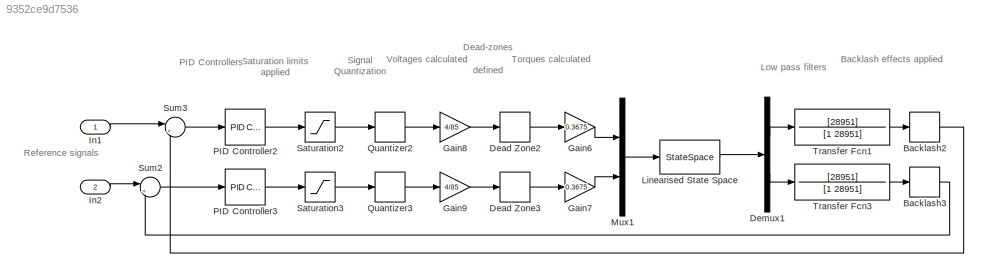
MODEL slx_9352ce9d7536
KIND model
CONFIG AbsTol = auto
CONFIG EnableMultiTasking = off
CONFIG FixedStep = auto
CONFIG MaxStep = auto
CONFIG MinStep = auto
CONFIG RelTol = 1e-3
CONFIG SampleTimeConstraint = Unconstrained
CONFIG SolverName = VariableStepAuto
CONFIG StartTime = 0.0
CONFIG StopTime = 10.0
BLOCK [Backlash] Backlash2
  BacklashWidth = 3
BLOCK [Backlash] Backlash3
  BacklashWidth = 3
BLOCK [DeadZone] Dead Zone2
  LowerValue = -2.1
  UpperValue = 2.1
BLOCK [DeadZone] Dead Zone3
  LowerValue = -2.1
  UpperValue = 2.1
BLOCK [Demux] Demux1
  Outputs = 2
BLOCK [Gain] Gain6
  Gain = 0.3675
BLOCK [Gain] Gain7
  Gain = 0.3675
BLOCK [Gain] Gain8
  Gain = 4/85
BLOCK [Gain] Gain9
  Gain = 4/85
BLOCK [Inport] In1
BLOCK [Inport] In2
  Port = 2
BLOCK [StateSpace] Linearised State Space
  A = A
  B = B
  C = [1 0 0 0; 0 1 0 0]
  D = [0 0; 0 0]
  InitialCondition = 0
BLOCK [Mux] Mux1
  DisplayOption = bar
  Inputs = 2
BLOCK [Reference] PID Controller2  REF=slpidlib/PID Controller
  LibrarySourceBlock = simulink/Continuous/PID Controller
  SourceBlock = slpidlib/PID Controller
  SourceType = PID 1dof
BLOCK [Reference] PID Controller3  REF=slpidlib/PID Controller
  LibrarySourceBlock = simulink/Continuous/PID Controller
  SourceBlock = slpidlib/PID Controller
  SourceType = PID 1dof
BLOCK [Quantizer] Quantizer2
  QuantizationInterval = 1
BLOCK [Quantizer] Quantizer3
  QuantizationInterval = 1
BLOCK [Saturate] Saturation2
  LowerLimit = -255
  UpperLimit = 255
BLOCK [Saturate] Saturation3
  LowerLimit = -255
  UpperLimit = 255
BLOCK [Sum] Sum2
  Inputs = |+-
BLOCK [Sum] Sum3
  Inputs = |+-
BLOCK [TransferFcn] Transfer Fcn1
  Denominator = [1 28951]
  Numerator = [28951]
BLOCK [TransferFcn] Transfer Fcn3
  Denominator = [1 28951]
  Numerator = [28951]
ANNOTATION (root): Backlash effects applied
ANNOTATION (root): Dead-zones defined
ANNOTATION (root): Low pass filters
ANNOTATION (root): Reference signals
ANNOTATION (root): Saturation limits applied
ANNOTATION (root): Signal Quantization
ANNOTATION (root): Torques calculated
ANNOTATION (root): Voltages calculated
ANNOTATION (root): PID Controllers
LINE Backlash2:1 -> Sum3:2
LINE Backlash3:1 -> Sum2:2
LINE Dead Zone2:1 -> Gain6:1
LINE Dead Zone3:1 -> Gain7:1
LINE Demux1:1 -> Transfer Fcn1:1
LINE Demux1:2 -> Transfer Fcn3:1
LINE Gain6:1 -> Mux1:1
LINE Gain7:1 -> Mux1:2
LINE Gain8:1 -> Dead Zone2:1
LINE Gain9:1 -> Dead Zone3:1
LINE In1:1 -> Sum3:1
LINE In2:1 -> Sum2:1
LINE Linearised State Space:1 -> Demux1:1
LINE Mux1:1 -> Linearised State Space:1
LINE PID Controller2:1 -> Saturation2:1
LINE PID Controller3:1 -> Saturation3:1
LINE Quantizer2:1 -> Gain8:1
LINE Quantizer3:1 -> Gain9:1
LINE Saturation2:1 -> Quantizer2:1
LINE Saturation3:1 -> Quantizer3:1
LINE Sum2:1 -> PID Controller3:1
LINE Sum3:1 -> PID Controller2:1
LINE Transfer Fcn1:1 -> Backlash2:1
LINE Transfer Fcn3:1 -> Backlash3:1
